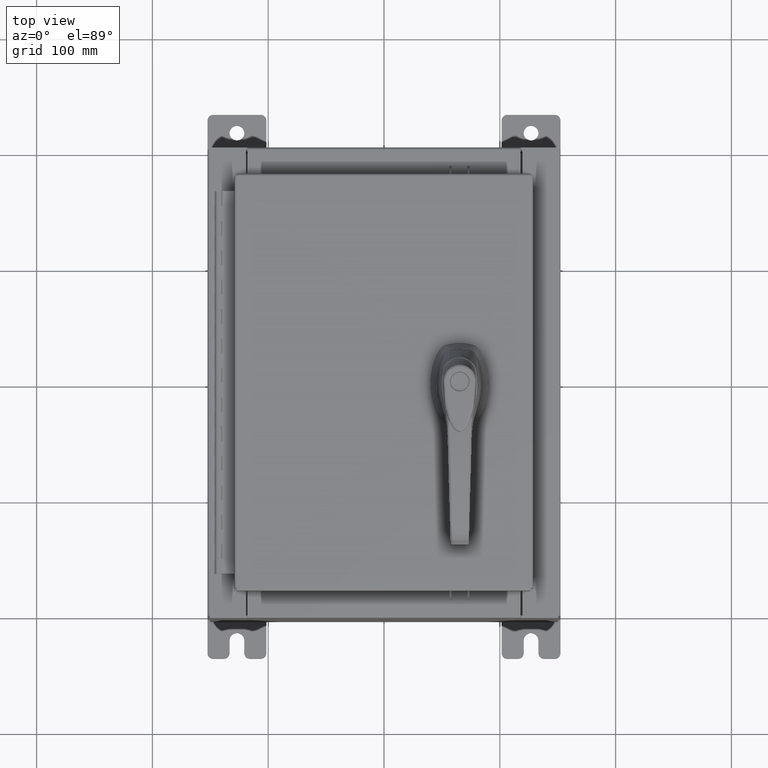
[diagram: clean part render]
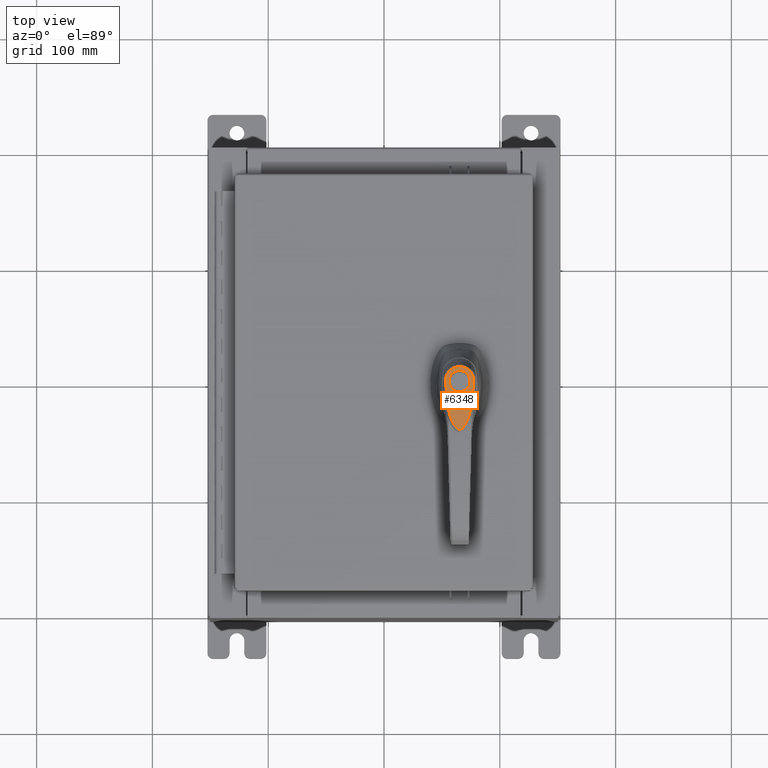
[diagram: same view with one face highlighted and labeled with its STEP entity id]
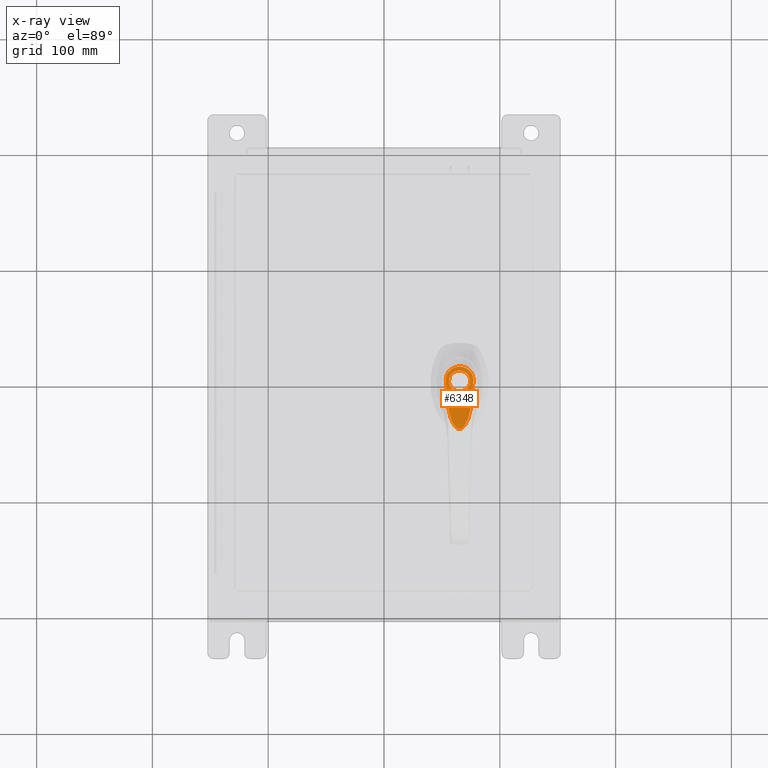
[diagram: x-ray of the same camera — body ghosted, the highlighted face saturated]
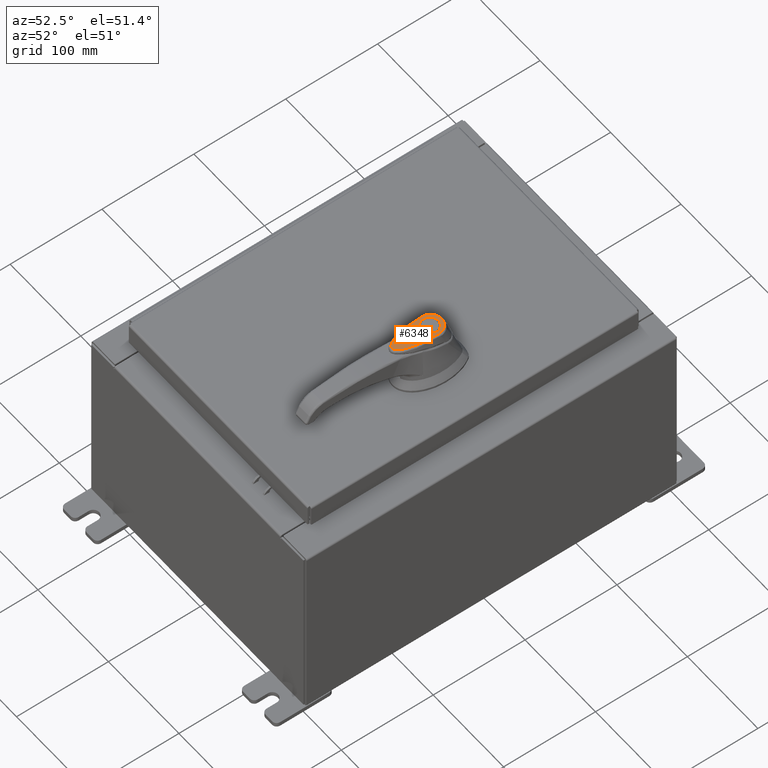
[diagram: same view with one face highlighted and labeled with its STEP entity id]
A machine part, top view. The second image highlights one B-rep face of the part: STEP entity #6348.
The next image is the same camera in x-ray: the body ghosted, the highlighted face saturated — about 0% of this face is hidden behind the body in this view.
A second angle (auxiliary view) of the same face is appended — the face is thin or edge-on in the first view.
In plain terms, the highlighted planar face has unit normal (0, 0, 1).
Its self-contained STEP definition (entity closure, byte-faithful):
#3 = CARTESIAN_POINT ( 'NONE',  ( -0.3460334751215680700, 0.1860253664896221500, 1.980314960629922000 ) ) ;
#48 = CARTESIAN_POINT ( 'NONE',  ( 1.578323082841545500, 0.06723060589633241000, 1.980314960629921500 ) ) ;
#253 = CARTESIAN_POINT ( 'NONE',  ( -0.1649306889570108500, 0.4634189354313594800, 1.980314960629921500 ) ) ;
#412 = CARTESIAN_POINT ( 'NONE',  ( 0.08720487243985672300, 0.4728568080396762800, 1.980314960629921500 ) ) ;
#614 = CARTESIAN_POINT ( 'NONE',  ( -0.08463924873056964700, 0.4725676488360962500, 1.980314960629921500 ) ) ;
#667 = EDGE_CURVE ( 'NONE', #21037, #29325, #90855, .T. ) ;
#904 = CARTESIAN_POINT ( 'NONE',  ( -0.08910381466073431800, -0.4724464152309315600, 1.980314960629921500 ) ) ;
#972 = CARTESIAN_POINT ( 'NONE',  ( -0.3987075394068722000, -0.3351130169564834300, 1.980314960629921500 ) ) ;
#986 = CARTESIAN_POINT ( 'NONE',  ( 0.2929845112066130600, 0.1348357858499972500, 1.980314960629922000 ) ) ;
#1273 = CARTESIAN_POINT ( 'NONE',  ( -0.2060914365165576700, -0.4528574917881068000, 1.980314960629921500 ) ) ;
#1643 = CARTESIAN_POINT ( 'NONE',  ( -0.3623454804213445100, -0.3686088045241797100, 1.980314960629921500 ) ) ;
#1741 = CARTESIAN_POINT ( 'NONE',  ( 0.2050450834193583100, -0.4701063821159979200, 1.980314960629921500 ) ) ;
#1882 = CARTESIAN_POINT ( 'NONE',  ( 1.176158790184276700, 0.3153824143514966100, 1.980314960629921500 ) ) ;
#1996 = CARTESIAN_POINT ( 'NONE',  ( -0.3873698764133599600, -0.3463175684987090400, 1.980314960629921500 ) ) ;
#2667 = CARTESIAN_POINT ( 'NONE',  ( -0.3749486679496776800, 0.1265985987407123900, 1.980314960629921700 ) ) ;
#3446 = EDGE_CURVE ( 'NONE', #14864, #76793, #33500, .T. ) ;
#3521 = CARTESIAN_POINT ( 'NONE',  ( 0.2900842300139764300, 0.1418251913374024600, 1.980314960629921500 ) ) ;
#3893 = CARTESIAN_POINT ( 'NONE',  ( -0.5282602553156187100, 0.08215987055594398100, 1.980314960629921500 ) ) ;
#4726 = CARTESIAN_POINT ( 'NONE',  ( -0.4337632918348776600, -0.2949397925354853000, 1.980314960629921500 ) ) ;
#4850 = CARTESIAN_POINT ( 'NONE',  ( -0.3923081069448494700, 0.06383425075046193800, 1.980314960629921700 ) ) ;
#4971 = CARTESIAN_POINT ( 'NONE',  ( -0.4737914642072748000, 0.2347010815242475100, 1.980314960629921500 ) ) ;
#4987 = CARTESIAN_POINT ( 'NONE',  ( 0.3130542098839731400, 0.06661046103129214500, 1.980314960629921700 ) ) ;
#5714 = CARTESIAN_POINT ( 'NONE',  ( -0.02840828145858799100, 0.3586620554689525800, 1.980314960629921500 ) ) ;
#5936 = CARTESIAN_POINT ( 'NONE',  ( 0.3137946438837113100, -0.06256599214653625600, 1.980314960629921500 ) ) ;
#6297 = CARTESIAN_POINT ( 'NONE',  ( 0.2641116473153556400, -0.1911702674029243100, 1.980314960629921700 ) ) ;
#6348 = ADVANCED_FACE ( 'NONE', ( #30471, #93423 ), #91085, .T. ) ;
#6531 = CARTESIAN_POINT ( 'NONE',  ( -0.3875115491628605700, -0.3461821960649185700, 1.980314960629921700 ) ) ;
#6649 = CARTESIAN_POINT ( 'NONE',  ( 0.1024551125972403700, -0.3294543087541342800, 1.980314960629921300 ) ) ;
#6998 = CARTESIAN_POINT ( 'NONE',  ( -0.05033187602192199700, -0.3586620554689525800, 1.980314960629921300 ) ) ;
#7025 = CARTESIAN_POINT ( 'NONE',  ( -0.05620868276384551100, 0.4729947885148219100, 1.980314960629921500 ) ) ;
#7042 = CARTESIAN_POINT ( 'NONE',  ( 1.102731962804125700, 0.3383951995980409900, 1.980314960629921500 ) ) ;
#7368 = CARTESIAN_POINT ( 'NONE',  ( -0.1699835576991507700, -0.3340364688901997800, 1.980314960629921500 ) ) ;
#7582 = CARTESIAN_POINT ( 'NONE',  ( -0.1245215643609424600, 0.3484936025614775400, 1.980314960629921300 ) ) ;
#7724 = CARTESIAN_POINT ( 'NONE',  ( -0.3361477735506478400, -0.2014215588395205400, 1.980314960629921700 ) ) ;
#7980 = CARTESIAN_POINT ( 'NONE',  ( -0.3870861921076187400, 0.3465881121332100000, 1.980314960629921500 ) ) ;
#8099 = CARTESIAN_POINT ( 'NONE',  ( -0.3909423282169973700, -0.07097283164640438800, 1.980314960629921500 ) ) ;
#8333 = CARTESIAN_POINT ( 'NONE',  ( -0.3455405495441109000, 0.3820390670373818900, 1.980314960629921500 ) ) ;
#8347 = CARTESIAN_POINT ( 'NONE',  ( -0.5252409000409604700, -0.09663414884607352000, 1.980314960629921500 ) ) ;
#8693 = CARTESIAN_POINT ( 'NONE',  ( -0.1369973162642306500, 0.4685071065196164700, 1.980314960629921500 ) ) ;
#8856 = CARTESIAN_POINT ( 'NONE',  ( 1.268280431736507500, -0.2812888762612419400, 1.980314960629921500 ) ) ;
#8984 = CARTESIAN_POINT ( 'NONE',  ( -0.08242698491537306400, -0.4726116127399041500, 1.980314960629922000 ) ) ;
#9064 = CARTESIAN_POINT ( 'NONE',  ( -0.08284808143885896700, 0.4726038563501988000, 1.980314960629921500 ) ) ;
#9332 = CARTESIAN_POINT ( 'NONE',  ( -0.09445612719366530700, -0.4722494760658380600, 1.980314960629921500 ) ) ;
#9432 = CARTESIAN_POINT ( 'NONE',  ( 1.543490168549529300, 0.1138050972603310800, 1.980314960629921500 ) ) ;
#9630 = CARTESIAN_POINT ( 'NONE',  ( 0.2674570705712831500, 0.1861245681561916300, 1.980314960629922000 ) ) ;
#9673 = CARTESIAN_POINT ( 'NONE',  ( -0.2332582629041683500, -0.4437875626226236400, 1.980314960629921500 ) ) ;
#10056 = CARTESIAN_POINT ( 'NONE',  ( -0.3732228957301653200, -0.3592753008835456500, 1.980314960629921500 ) ) ;
#10419 = CARTESIAN_POINT ( 'NONE',  ( -0.04664946918703361000, 0.4730904212098369100, 1.980314960629921500 ) ) ;
#10650 = CARTESIAN_POINT ( 'NONE',  ( 0.4363671753681787600, -0.4557804977568062900, 1.980314960629921500 ) ) ;
#10850 = CARTESIAN_POINT ( 'NONE',  ( -0.5350424932133020000, 0.01701923041682801600, 1.980314960629921500 ) ) ;
#11014 = CARTESIAN_POINT ( 'NONE',  ( 1.597222922322730800, -0.01201851889250673100, 1.980314960629921500 ) ) ;
#11126 = CARTESIAN_POINT ( 'NONE',  ( 1.580981480744917600, -0.06290138429529275300, 1.980314960629921500 ) ) ;
#11582 = CARTESIAN_POINT ( 'NONE',  ( -0.3936805541985073900, 0.05581565006307766900, 1.980314960629921500 ) ) ;
#11696 = CARTESIAN_POINT ( 'NONE',  ( -0.3878283072792974600, -0.3458782409070961800, 1.980314960629921500 ) ) ;
#11943 = CARTESIAN_POINT ( 'NONE',  ( 0.2983888077856775600, 0.1212128666112272700, 1.980314960629921500 ) ) ;
#12108 = CARTESIAN_POINT ( 'NONE',  ( -0.07532628943600366800, 0.4727249829826843900, 1.980314960629921500 ) ) ;
#12670 = CARTESIAN_POINT ( 'NONE',  ( -0.2381677188536077400, 0.2985407081053063600, 1.980314960629921700 ) ) ;
#12789 = CARTESIAN_POINT ( 'NONE',  ( -0.3885411725621795700, 0.3451920092296529900, 1.980314960629921500 ) ) ;
#12855 = EDGE_CURVE ( 'NONE', #54135, #98325, #90721, .T. ) ;
#13018 = CARTESIAN_POINT ( 'NONE',  ( -0.3881722868793791000, 0.3455475263991221700, 1.980314960629921500 ) ) ;
#13031 = CARTESIAN_POINT ( 'NONE',  ( 0.2229915133911826400, 0.2448632828438075700, 1.980314960629921700 ) ) ;
#14302 = CARTESIAN_POINT ( 'NONE',  ( 0.3111889694992966400, -0.07669413050298865000, 1.980314960629922000 ) ) ;
#14396 = CARTESIAN_POINT ( 'NONE',  ( -0.3929286078329494200, -0.3409055632553609800, 1.980314960629921500 ) ) ;
#14655 = CARTESIAN_POINT ( 'NONE',  ( 0.2472876877141492500, -0.2169763970757519200, 1.980314960629921700 ) ) ;
#14682 = CARTESIAN_POINT ( 'NONE',  ( 1.595788573272843600, -0.02169607774001459600, 1.980314960629921500 ) ) ;
#14864 = VERTEX_POINT ( 'NONE', #102166 ) ;
#15018 = CARTESIAN_POINT ( 'NONE',  ( 0.09546570710983810800, -0.3323545899467709700, 1.980314960629922000 ) ) ;
#15147 = CARTESIAN_POINT ( 'NONE',  ( -0.07523997137641627600, -0.4727263187239012500, 1.980314960629921500 ) ) ;
#15342 = CARTESIAN_POINT ( 'NONE',  ( -0.4829184032223817200, -0.2200568231816590100, 1.980314960629921500 ) ) ;
#15374 = CARTESIAN_POINT ( 'NONE',  ( -0.08570917657966978200, -0.3557307668625985200, 1.980314960629920900 ) ) ;
#15508 = CARTESIAN_POINT ( 'NONE',  ( 1.121908882920315000, -0.3326852328564502400, 1.980314960629921500 ) ) ;
#15603 = CARTESIAN_POINT ( 'NONE',  ( 0.07357996418946102800, 0.3405009096408575000, 1.980314960629921300 ) ) ;
#15733 = CARTESIAN_POINT ( 'NONE',  ( -0.1991321338569195200, -0.3215171343854930600, 1.980314960629921300 ) ) ;
#16084 = CARTESIAN_POINT ( 'NONE',  ( -0.3461972280516289500, -0.1861245681561147800, 1.980314960629922000 ) ) ;
#16208 = CARTESIAN_POINT ( 'NONE',  ( 0.01644028749028795700, 0.3543114529271935200, 1.980314960629921700 ) ) ;
#16325 = CARTESIAN_POINT ( 'NONE',  ( -0.3857889185272409500, 0.3478210874559781700, 1.980314960629921500 ) ) ;
#16440 = CARTESIAN_POINT ( 'NONE',  ( -0.3917943673642886300, -0.06661046103130424700, 1.980314960629921500 ) ) ;
#16684 = CARTESIAN_POINT ( 'NONE',  ( -0.3219708206481778400, 0.3983083233589804200, 1.980314960629921500 ) ) ;
#16791 = CARTESIAN_POINT ( 'NONE',  ( 0.3172941539302389100, 0.04370577023432149800, 1.980314960629921700 ) ) ;
#16916 = CARTESIAN_POINT ( 'NONE',  ( -0.2458742789840064300, 0.2932650189815146400, 1.980314960629922000 ) ) ;
#16934 = CARTESIAN_POINT ( 'NONE',  ( 0.3091235238213354000, 0.08515148562069914400, 1.980314960629921500 ) ) ;
#17041 = CARTESIAN_POINT ( 'NONE',  ( -0.1158055304010717200, 0.4708203569577932800, 1.980314960629921500 ) ) ;
#17051 = CARTESIAN_POINT ( 'NONE',  ( -0.4179624665174338500, 0.3141597883887908300, 1.980314960629921500 ) ) ;
#17293 = CARTESIAN_POINT ( 'NONE',  ( 0.3192913385826769400, 0.0000000000000000000, 1.980314960629921300 ) ) ;
#17403 = CARTESIAN_POINT ( 'NONE',  ( -0.08242723658501820100, 0.4726116084661486900, 1.980314960629921500 ) ) ;
#17691 = CARTESIAN_POINT ( 'NONE',  ( -0.1015711166539494900, -0.4718591137676875200, 1.980314960629921500 ) ) ;
#18068 = CARTESIAN_POINT ( 'NONE',  ( -0.2596255593058164300, -0.4328507072592414100, 1.980314960629921500 ) ) ;
#18161 = CARTESIAN_POINT ( 'NONE',  ( -0.5350611771973786700, 0.0005448158096190913100, 1.980314960629921500 ) ) ;
#18289 = CARTESIAN_POINT ( 'NONE',  ( -0.4483655509626719400, -0.2751802159626344200, 1.980314960629921500 ) ) ;
#18433 = CARTESIAN_POINT ( 'NONE',  ( -0.3785756675970898800, -0.3545174976077509800, 1.980314960629921500 ) ) ;
#18864 = CARTESIAN_POINT ( 'NONE',  ( 0.08314894677640331800, 0.3371086599075542900, 1.980314960629921300 ) ) ;
#19374 = CARTESIAN_POINT ( 'NONE',  ( 0.9722638919769169800, -0.3736641444643690700, 1.980314960629921500 ) ) ;
#19506 = CARTESIAN_POINT ( 'NONE',  ( -0.07991996519473208700, 0.4726526890894067200, 1.980314960629922000 ) ) ;
#19813 = CARTESIAN_POINT ( 'NONE',  ( -0.5350985451655322400, -0.03240401340479875900, 1.980314960629921500 ) ) ;
#20532 = CARTESIAN_POINT ( 'NONE',  ( -0.3914746598113853500, -0.3423443711752168800, 1.980314960629921500 ) ) ;
#20833 = CARTESIAN_POINT ( 'NONE',  ( -0.3881708734106047400, -0.3455488864459843000, 1.980314960629921500 ) ) ;
#21032 = EDGE_CURVE ( 'NONE', #98325, #21037, #94327, .T. ) ;
#21037 = VERTEX_POINT ( 'NONE', #32687 ) ;
#21088 = CARTESIAN_POINT ( 'NONE',  ( -0.08307584897447931000, 0.3566642326703967600, 1.980314960629921700 ) ) ;
#21421 = CARTESIAN_POINT ( 'NONE',  ( -0.4385485960235056000, 0.2891495245046870600, 1.980314960629921500 ) ) ;
#22377 = CARTESIAN_POINT ( 'NONE',  ( 0.3192907000348125800, -0.01096869861385410400, 1.980314960629921300 ) ) ;
#22722 = CARTESIAN_POINT ( 'NONE',  ( 0.3011308309007036400, -0.1129500429295131200, 1.980314960629921700 ) ) ;
#23049 = CARTESIAN_POINT ( 'NONE',  ( 0.2054932041037261800, -0.2623615921312941200, 1.980314960629922400 ) ) ;
#23413 = CARTESIAN_POINT ( 'NONE',  ( 0.08184278787108309500, -0.3377588865258320800, 1.980314960629921500 ) ) ;
#23461 = CARTESIAN_POINT ( 'NONE',  ( 1.562275875256772000, 0.09148576712676960400, 1.980314960629921500 ) ) ;
#23506 = CARTESIAN_POINT ( 'NONE',  ( -0.5105183832494651900, -0.1517912693071043500, 1.980314960629921500 ) ) ;
#23749 = AXIS2_PLACEMENT_3D ( 'NONE', #93953, #65350, #65952 ) ;
#23773 = CARTESIAN_POINT ( 'NONE',  ( -0.09923361088520431300, -0.3536329620602653400, 1.980314960629921300 ) ) ;
#23871 = CARTESIAN_POINT ( 'NONE',  ( -0.4478552296108499500, 0.2759077513646394600, 1.980314960629921500 ) ) ;
#24134 = CARTESIAN_POINT ( 'NONE',  ( -0.2253954452299789200, -0.3066633963813159000, 1.980314960629921500 ) ) ;
#24502 = CARTESIAN_POINT ( 'NONE',  ( -0.3645627560153325600, -0.1515046563372954600, 1.980314960629920900 ) ) ;
#24646 = CARTESIAN_POINT ( 'NONE',  ( 0.1466552877494987100, 0.3066633963813794100, 1.980314960629921300 ) ) ;
#24758 = CARTESIAN_POINT ( 'NONE',  ( -0.3838351085531698800, 0.3496619482468812400, 1.980314960629921500 ) ) ;
#24877 = CARTESIAN_POINT ( 'NONE',  ( -0.3980302181523522900, -0.02195139480795076100, 1.980314960629921700 ) ) ;
#25102 = CARTESIAN_POINT ( 'NONE',  ( -0.4436829218908339100, -0.2818691603479849300, 1.980314960629921500 ) ) ;
#25107 = CARTESIAN_POINT ( 'NONE',  ( -0.2730623559749204600, 0.4272549482576785700, 1.980314960629921500 ) ) ;
#25476 = CARTESIAN_POINT ( 'NONE',  ( -0.1015964453185491900, 0.4718575711917122300, 1.980314960629921500 ) ) ;
#25488 = CARTESIAN_POINT ( 'NONE',  ( 0.05424208542656262800, 0.3465737481924348100, 1.980314960629921300 ) ) ;
#25651 = CARTESIAN_POINT ( 'NONE',  ( -0.05588618822791478100, -0.4729988060393404700, 1.980314960629921500 ) ) ;
#26137 = CARTESIAN_POINT ( 'NONE',  ( -0.1157585250431939100, -0.4708245290708770700, 1.980314960629921500 ) ) ;
#26486 = CARTESIAN_POINT ( 'NONE',  ( -0.2851698570209809100, -0.4200730033132770200, 1.980314960629921500 ) ) ;
#26790 = CARTESIAN_POINT ( 'NONE',  ( -0.3104792740692926000, 0.2361125767542176200, 1.980314960629921700 ) ) ;
#26810 = CARTESIAN_POINT ( 'NONE',  ( 0.02049345340479927600, 0.3536329620602653400, 1.980314960629921700 ) ) ;
#26834 = CARTESIAN_POINT ( 'NONE',  ( -0.3825258877469194200, -0.3508812275622604800, 1.980314960629921500 ) ) ;
#27049 = CARTESIAN_POINT ( 'NONE',  ( -0.5085938011967370300, 0.1606069282378415300, 1.980314960629921500 ) ) ;
#27438 = CARTESIAN_POINT ( 'NONE',  ( 1.470156225902664800, 0.1766654952957526500, 1.980314960629921500 ) ) ;
#27899 = EDGE_CURVE ( 'NONE', #29325, #54135, #78044, .T. ) ;
#28487 = CARTESIAN_POINT ( 'NONE',  ( -0.07756552208144629200, -0.4726903508369070800, 1.980314960629921300 ) ) ;
#29140 = CARTESIAN_POINT ( 'NONE',  ( -0.3914802376202897700, 0.3423388953478974700, 1.980314960629921500 ) ) ;
#29280 = CARTESIAN_POINT ( 'NONE',  ( 0.2918345451737252000, 0.1376368775919698000, 1.980314960629921700 ) ) ;
#29325 = VERTEX_POINT ( 'NONE', #69762 ) ;
#29393 = CARTESIAN_POINT ( 'NONE',  ( -0.3929338073500184300, 0.3409004178027113500, 1.980314960629921500 ) ) ;
#30128 = CARTESIAN_POINT ( 'NONE',  ( 1.516036056365981400, 0.1409614064658847900, 1.980314960629921500 ) ) ;
#30471 = FACE_OUTER_BOUND ( 'NONE', #77638, .T. ) ;
#30745 = CARTESIAN_POINT ( 'NONE',  ( 0.2017353094300180200, 0.4702191763794705800, 1.980314960629921500 ) ) ;
#30961 = CARTESIAN_POINT ( 'NONE',  ( 1.597735851608700100, -0.002229061537412255800, 1.980314960629921500 ) ) ;
#31035 = CARTESIAN_POINT ( 'NONE',  ( -0.3739116765101641000, 0.1293135543761235500, 1.980314960629922000 ) ) ;
#31051 = CARTESIAN_POINT ( 'NONE',  ( 0.2962085104693723500, -0.1265985987406761700, 1.980314960629921500 ) ) ;
#31162 = CARTESIAN_POINT ( 'NONE',  ( 0.03732405176291133500, 0.3505590482394515000, 1.980314960629921700 ) ) ;
#31404 = CARTESIAN_POINT ( 'NONE',  ( 0.1746821918969629900, -0.2879036309451099000, 1.980314960629921500 ) ) ;
#31516 = CARTESIAN_POINT ( 'NONE',  ( -0.4126507408910013400, 0.3202889923274089300, 1.980314960629921500 ) ) ;
#31736 = CARTESIAN_POINT ( 'NONE',  ( 0.04578140688055916400, -0.3484936025614887600, 1.980314960629921500 ) ) ;
#31875 = CARTESIAN_POINT ( 'NONE',  ( -0.3683910364418486200, 0.1432845004923061200, 1.980314960629921300 ) ) ;
#32095 = CARTESIAN_POINT ( 'NONE',  ( -0.1032043294905977800, -0.3529380282046981100, 1.980314960629921500 ) ) ;
#32151 = CARTESIAN_POINT ( 'NONE',  ( -0.07989113601712974400, -0.4726531818959190900, 1.980314960629921300 ) ) ;
#32462 = CARTESIAN_POINT ( 'NONE',  ( -0.2330439330429125700, -0.3018905250830795100, 1.980314960629921700 ) ) ;
#32669 = CARTESIAN_POINT ( 'NONE',  ( -0.3734065476303434200, 0.1306134789590225100, 1.980314960629921300 ) ) ;
#32683 = CARTESIAN_POINT ( 'NONE',  ( -0.4670960672500241200, -0.2484244384212323500, 1.980314960629921500 ) ) ;
#32687 = CARTESIAN_POINT ( 'NONE',  ( -0.08221679023054297200, 0.4726152583958166400, 1.980314960629921500 ) ) ;
#32808 = CARTESIAN_POINT ( 'NONE',  ( -0.3705747026540547300, -0.1376368775919343500, 1.980314960629921300 ) ) ;
#32940 = CARTESIAN_POINT ( 'NONE',  ( -0.2705032716355849100, 0.2747471054765469600, 1.980314960629921500 ) ) ;
#33037 = CARTESIAN_POINT ( 'NONE',  ( -0.3812089617321373600, 0.3520934887623176100, 1.980314960629921500 ) ) ;
#33321 = CARTESIAN_POINT ( 'NONE',  ( 0.7310392802102450000, 0.4203552819370505700, 1.980314960629921500 ) ) ;
#33406 = CARTESIAN_POINT ( 'NONE',  ( -0.2335839899547011700, 0.4436634281019054500, 1.980314960629921500 ) ) ;
#33415 = CARTESIAN_POINT ( 'NONE',  ( -0.4287098159689140500, -0.3014231977939074200, 1.980314960629921500 ) ) ;
#33500 = B_SPLINE_CURVE_WITH_KNOTS ( 'NONE', 3,
 ( #102904, #49493, #71181, #76197, #11582, #39401, #51369, #4850, #85344, #56842, #49027, #98167, #2667, #31035, #32669, #31875, #91410, #58445, #3, #57172, #74134, #100077, #26790, #57661, #32940, #85679, #16916, #74990, #12670, #41371, #39265, #94050, #37198, #72132, #102772, #96569, #55469, #99614, #7582, #90560, #106518, #105149, #79793, #21088, #76294, #5714, #106508, #72228, #16208, #26810, #42309, #36960, #31162, #25488, #15603, #18864, #45350, #86667, #36618, #60698, #51841, #48681, #24646, #97314, #74398, #57526, #51621, #13031, #59986, #93917, #72701, #46567, #98884, #9630, #107275, #89258, #3521, #29280, #986, #41604, #11943, #52059, #16934, #36368, #67409, #74500, #4987, #16791, #102174, #17293 ),
 .UNSPECIFIED., .F., .F.,
 ( 4, 1, 1, 1, 2, 2, 1, 1, 1, 2, 2, 1, 1, 2, 2, 2, 1, 1, 2, 2, 1, 1, 1, 2, 2, 1, 1, 1, 2, 2, 2, 1, 1, 1, 2, 2, 1, 1, 1, 2, 2, 1, 1, 2, 2, 2, 1, 1, 2, 2, 1, 1, 1, 2, 2, 1, 1, 1, 2, 2, 4 ),
 ( 0.0000000000000000000, 0.03124999999999973600, 0.04687499999999961100, 0.05468749999999955600, 0.05859374999999950700, 0.06249999999999945200, 0.09374999999999898700, 0.1093749999999988100, 0.1171874999999987400, 0.1210937499999987000, 0.1249999999999986700, 0.1562499999999982500, 0.1718749999999979700, 0.1796874999999977800, 0.1874999999999976100, 0.2499999999999966700, 0.2812499999999961100, 0.2968749999999958400, 0.3046874999999957300, 0.3124999999999956100, 0.3437499999999950000, 0.3593749999999947300, 0.3671874999999946700, 0.3710937499999947300, 0.3749999999999947300, 0.4062499999999948400, 0.4218749999999949500, 0.4296874999999949500, 0.4335937499999949500, 0.4374999999999950000, 0.4999999999999949500, 0.5312499999999950000, 0.5468749999999948900, 0.5546874999999948900, 0.5585937499999948900, 0.5624999999999947800, 0.5937499999999948900, 0.6093749999999948900, 0.6171874999999947800, 0.6210937499999947800, 0.6249999999999946700, 0.6562499999999948900, 0.6718749999999950000, 0.6796874999999950000, 0.6874999999999951200, 0.7499999999999954500, 0.7812499999999956700, 0.7968749999999956700, 0.8046874999999958900, 0.8124999999999960000, 0.8437499999999966700, 0.8593749999999970000, 0.8671874999999971100, 0.8710937499999972200, 0.8749999999999972200, 0.9062499999999980000, 0.9218749999999983300, 0.9296874999999984500, 0.9335937499999985600, 0.9374999999999986700, 1.000000000000000000 ),
 .UNSPECIFIED. ) ;
#33634 = CARTESIAN_POINT ( 'NONE',  ( -0.3900160474665486100, 0.3437694418360269800, 1.980314960629921500 ) ) ;
#33775 = CARTESIAN_POINT ( 'NONE',  ( -0.09447141683401966100, 0.4722488274789352600, 1.980314960629921500 ) ) ;
#33800 = CARTESIAN_POINT ( 'NONE',  ( 0.5133453557305254200, -0.4485433274845153100, 1.980314960629921500 ) ) ;
#34046 = CARTESIAN_POINT ( 'NONE',  ( -0.007517924510310238100, -0.4733714055076380700, 1.980314960629921500 ) ) ;
#34049 = CARTESIAN_POINT ( 'NONE',  ( -0.08284732465537038300, -0.4726038705034372700, 1.980314960629921500 ) ) ;
#34396 = CARTESIAN_POINT ( 'NONE',  ( -0.1369131218506565200, -0.4685182027219951800, 1.980314960629921500 ) ) ;
#34640 = CARTESIAN_POINT ( 'NONE',  ( 0.5902123049430994000, -0.4391864247139504200, 1.980314960629921500 ) ) ;
#34753 = CARTESIAN_POINT ( 'NONE',  ( -0.3101624724462414600, -0.4060636234411494900, 1.980314960629921500 ) ) ;
#35125 = CARTESIAN_POINT ( 'NONE',  ( -0.3851379391552978100, -0.3484344339005818200, 1.980314960629921500 ) ) ;
#35194 = CARTESIAN_POINT ( 'NONE',  ( -0.5049820463145244800, -0.1672956347779330200, 1.980314960629921500 ) ) ;
#35365 = CARTESIAN_POINT ( 'NONE',  ( 1.550072899479856000, 0.1067080664254876500, 1.980314960629921500 ) ) ;
#36368 = CARTESIAN_POINT ( 'NONE',  ( 0.3113317630397768900, 0.07524207302071928000, 1.980314960629921500 ) ) ;
#36618 = CARTESIAN_POINT ( 'NONE',  ( 0.09124340021885978000, 0.3340364688901901200, 1.980314960629921300 ) ) ;
#36960 = CARTESIAN_POINT ( 'NONE',  ( 0.02446417201030385100, 0.3529380282046893900, 1.980314960629921300 ) ) ;
#37198 = CARTESIAN_POINT ( 'NONE',  ( -0.1811952700775440500, 0.3294543087541296800, 1.980314960629921500 ) ) ;
#37240 = CARTESIAN_POINT ( 'NONE',  ( 1.391278555791930700, -0.2246854927315540000, 1.980314960629921500 ) ) ;
#37411 = CARTESIAN_POINT ( 'NONE',  ( -0.5307744440836967800, 0.06609376683451270700, 1.980314960629921500 ) ) ;
#38838 = CARTESIAN_POINT ( 'NONE',  ( 1.319314512285418000, 0.2603791411963813900, 1.980314960629921500 ) ) ;
#38963 = CARTESIAN_POINT ( 'NONE',  ( -0.07762313332334316900, 0.4726894211970827400, 1.980314960629921700 ) ) ;
#39048 = CARTESIAN_POINT ( 'NONE',  ( -0.4285859177702990300, 0.3019013805115548500, 1.980314960629921500 ) ) ;
#39265 = CARTESIAN_POINT ( 'NONE',  ( -0.2098605967867733200, 0.3159591632254510300, 1.980314960629921500 ) ) ;
#39277 = CARTESIAN_POINT ( 'NONE',  ( 0.2946663901500281000, -0.1306134789590194000, 1.980314960629921500 ) ) ;
#39401 = CARTESIAN_POINT ( 'NONE',  ( -0.3930024523242821600, 0.05986671322786813600, 1.980314960629920900 ) ) ;
#39523 = CARTESIAN_POINT ( 'NONE',  ( 0.6559571401844011000, 0.4313472701839113400, 1.980314960629921500 ) ) ;
#39613 = CARTESIAN_POINT ( 'NONE',  ( 0.1620514800993853000, -0.2967776948104677300, 1.980314960629921300 ) ) ;
#39969 = CARTESIAN_POINT ( 'NONE',  ( 0.03160275290629457900, -0.3515722494768215300, 1.980314960629921700 ) ) ;
#40326 = CARTESIAN_POINT ( 'NONE',  ( -0.1329822429071788900, -0.3465737481923122900, 1.980314960629920600 ) ) ;
#40355 = CARTESIAN_POINT ( 'NONE',  ( 0.8964292418196098100, -0.3902590091590377700, 1.980314960629921500 ) ) ;
#40377 = CARTESIAN_POINT ( 'NONE',  ( 0.5806004247914073900, 0.4403452868113804700, 1.980314960629921500 ) ) ;
#40669 = CARTESIAN_POINT ( 'NONE',  ( -0.2754826554943377600, -0.2711091953291923100, 1.980314960629921500 ) ) ;
#40897 = CARTESIAN_POINT ( 'NONE',  ( -0.3875115491687560200, 0.3461821960709959800, 1.980314960629921700 ) ) ;
#41021 = CARTESIAN_POINT ( 'NONE',  ( -0.3723143065273208900, -0.1333724331941687200, 1.980314960629921500 ) ) ;
#41265 = CARTESIAN_POINT ( 'NONE',  ( -0.3759145296176592000, 0.3569106835303212400, 1.980314960629921500 ) ) ;
#41371 = CARTESIAN_POINT ( 'NONE',  ( -0.2254946468963281200, 0.3068271493114350100, 1.980314960629922000 ) ) ;
#41604 = CARTESIAN_POINT ( 'NONE',  ( 0.2935741490470097400, 0.1333724331941575900, 1.980314960629921700 ) ) ;
#41623 = CARTESIAN_POINT ( 'NONE',  ( -0.2063469005152438500, 0.4527788417979495800, 1.980314960629921500 ) ) ;
#41645 = CARTESIAN_POINT ( 'NONE',  ( 0.8201754043372622100, -0.4043008819726713300, 1.980314960629921500 ) ) ;
#41951 = CARTESIAN_POINT ( 'NONE',  ( -0.08911218345606751500, 0.4724461501084892800, 1.980314960629921500 ) ) ;
#42232 = CARTESIAN_POINT ( 'NONE',  ( -0.08463637374111458700, -0.4725677119985549100, 1.980314960629921500 ) ) ;
#42309 = CARTESIAN_POINT ( 'NONE',  ( 0.02319424198996595000, 0.3531650318231930900, 1.980314960629921500 ) ) ;
#42586 = CARTESIAN_POINT ( 'NONE',  ( -0.1647848647087372900, -0.4634490614692741200, 1.980314960629921500 ) ) ;
#42942 = CARTESIAN_POINT ( 'NONE',  ( -0.3340348276712665200, -0.3903851773611313200, 1.980314960629921500 ) ) ;
#43008 = CARTESIAN_POINT ( 'NONE',  ( -0.5078435215611392100, -0.1595973291847777600, 1.980314960629921500 ) ) ;
#43286 = CARTESIAN_POINT ( 'NONE',  ( -0.3864386105629816800, -0.3472053866973299800, 1.980314960629921500 ) ) ;
#43306 = CARTESIAN_POINT ( 'NONE',  ( 1.028895748518538600, 0.3584350549856464800, 1.980314960629921500 ) ) ;
#43534 = CARTESIAN_POINT ( 'NONE',  ( 1.575941988744961100, -0.07131646048060566500, 1.980314960629921500 ) ) ;
#44021 = CARTESIAN_POINT ( 'NONE',  ( 0.1277824018765411600, -0.4719217496367980600, 1.980314960629921500 ) ) ;
#44499 = ORIENTED_EDGE ( 'NONE', *, *, #27899, .F. ) ;
#44589 = CARTESIAN_POINT ( 'NONE',  ( 0.8057848570449698300, 0.4069191767656535300, 1.980314960629921500 ) ) ;
#44794 = CARTESIAN_POINT ( 'NONE',  ( 1.533934478396610900, -0.1243575969844703700, 1.980314960629921500 ) ) ;
#45053 = CARTESIAN_POINT ( 'NONE',  ( 1.559352640416484400, -0.09528020240156004400, 1.980314960629921500 ) ) ;
#45068 = CARTESIAN_POINT ( 'NONE',  ( 1.519479381491168700, -0.1373750790292099200, 1.980314960629921500 ) ) ;
#45350 = CARTESIAN_POINT ( 'NONE',  ( 0.08722852000055561500, 0.3355785892095287100, 1.980314960629921500 ) ) ;
#45760 = CARTESIAN_POINT ( 'NONE',  ( 1.454009790257094300, 0.1872909914061016100, 1.980314960629921500 ) ) ;
#46533 = CARTESIAN_POINT ( 'NONE',  ( -0.4181027616142126100, -0.3139978285413978500, 1.980314960629921500 ) ) ;
#46567 = CARTESIAN_POINT ( 'NONE',  ( 0.2574076160703318000, 0.2014215588395073500, 1.980314960629921700 ) ) ;
#46879 = CARTESIAN_POINT ( 'NONE',  ( -0.5021205710679097500, -0.1749939403710883400, 1.980314960629921500 ) ) ;
#47033 = CARTESIAN_POINT ( 'NONE',  ( 1.573550776169326600, 0.07565280700662487000, 1.980314960629921500 ) ) ;
#47128 = CARTESIAN_POINT ( 'NONE',  ( 0.3163590124615893700, -0.04634815583788004500, 1.980314960629921500 ) ) ;
#47356 = CARTESIAN_POINT ( 'NONE',  ( -0.4958418114767188500, -0.1900824984233751800, 1.980314960629921500 ) ) ;
#47476 = CARTESIAN_POINT ( 'NONE',  ( 0.2821470556455308300, -0.1597620551163928800, 1.980314960629921500 ) ) ;
#47710 = CARTESIAN_POINT ( 'NONE',  ( -0.3900114955411931300, -0.3437738493058599700, 1.980314960629921500 ) ) ;
#47827 = CARTESIAN_POINT ( 'NONE',  ( 0.1467544894160282000, -0.3068271493114412300, 1.980314960629920900 ) ) ;
#48166 = CARTESIAN_POINT ( 'NONE',  ( 0.02724038229113380500, -0.3524242886241310000, 1.980314960629921700 ) ) ;
#48199 = CARTESIAN_POINT ( 'NONE',  ( 1.424969745829789900, -0.2054446552350647800, 1.980314960629921500 ) ) ;
#48539 = CARTESIAN_POINT ( 'NONE',  ( -0.1618891042568502700, -0.3371086599075010000, 1.980314960629921500 ) ) ;
#48677 = CARTESIAN_POINT ( 'NONE',  ( 0.2822171567039237200, -0.4665642638906491400, 1.980314960629921500 ) ) ;
#48681 = CARTESIAN_POINT ( 'NONE',  ( 0.1388857937853739400, 0.3113338424871231500, 1.980314960629921300 ) ) ;
#48905 = CARTESIAN_POINT ( 'NONE',  ( -0.3141171842167376200, -0.2311331928953767000, 1.980314960629921700 ) ) ;
#49027 = CARTESIAN_POINT ( 'NONE',  ( -0.3798709883809908700, 0.1129500429296162900, 1.980314960629921700 ) ) ;
#49274 = CARTESIAN_POINT ( 'NONE',  ( -0.3827380511620257500, -0.1047617083938691800, 1.980314960629920900 ) ) ;
#49493 = CARTESIAN_POINT ( 'NONE',  ( -0.3980308575151102500, 0.01096869861398706200, 1.980314960629921700 ) ) ;
#49513 = CARTESIAN_POINT ( 'NONE',  ( -0.3678463193632430800, 0.3639986571838570400, 1.980314960629921500 ) ) ;
#49867 = CARTESIAN_POINT ( 'NONE',  ( -0.1788438622881810300, 0.4605421863236986400, 1.980314960629921500 ) ) ;
#50044 = CARTESIAN_POINT ( 'NONE',  ( -0.06576762287869096500, 0.4728729787836279400, 1.980314960629921500 ) ) ;
#50093 = CARTESIAN_POINT ( 'NONE',  ( -0.4388167677008412700, -0.2884563872770630200, 1.980314960629921500 ) ) ;
#50231 = CARTESIAN_POINT ( 'NONE',  ( -0.08553418213987230800, 0.4725455028846750100, 1.980314960629921500 ) ) ;
#50369 = CARTESIAN_POINT ( 'NONE',  ( -0.3875115491628605700, -0.3461821960649185700, 1.980314960629921700 ) ) ;
#50440 = CARTESIAN_POINT ( 'NONE',  ( -0.3987056101401826300, 0.3351147875512550100, 1.980314960629921500 ) ) ;
#50504 = CARTESIAN_POINT ( 'NONE',  ( -0.08731791901407372200, -0.4725013785836246200, 1.980314960629921500 ) ) ;
#50740 = CARTESIAN_POINT ( 'NONE',  ( 1.590646572324265500, -0.04060489388900415800, 1.980314960629921500 ) ) ;
#50841 = CARTESIAN_POINT ( 'NONE',  ( -0.06556237488687968700, -0.4728759962588429700, 1.980314960629921500 ) ) ;
#50845 = CARTESIAN_POINT ( 'NONE',  ( -0.1924348524151419700, -0.4570575316218523600, 1.980314960629921500 ) ) ;
#50864 = CARTESIAN_POINT ( 'NONE',  ( 1.570902496745003800, -0.07973153666591843700, 1.980314960629921500 ) ) ;
#51187 = CARTESIAN_POINT ( 'NONE',  ( -0.3567598116070043200, -0.3730729552277530200, 1.980314960629921500 ) ) ;
#51275 = EDGE_CURVE ( 'NONE', #76793, #14864, #73218, .T. ) ;
#51369 = CARTESIAN_POINT ( 'NONE',  ( -0.3925348013640226900, 0.06256599214656856400, 1.980314960629921500 ) ) ;
#51537 = CARTESIAN_POINT ( 'NONE',  ( -0.3872281067822374000, -0.3464528391013695400, 1.980314960629921500 ) ) ;
#51551 = CARTESIAN_POINT ( 'NONE',  ( 0.4296111509411292800, 0.4563381427769774300, 1.980314960629921500 ) ) ;
#51621 = CARTESIAN_POINT ( 'NONE',  ( 0.1967424980140255500, 0.2711091953292489300, 1.980314960629922400 ) ) ;
#51826 = CARTESIAN_POINT ( 'NONE',  ( -0.3878290285125424200, 0.3458775484203818800, 1.980314960629921500 ) ) ;
#51841 = CARTESIAN_POINT ( 'NONE',  ( 0.1203919763762625700, 0.3215171343856246800, 1.980314960629921300 ) ) ;
#52059 = CARTESIAN_POINT ( 'NONE',  ( 0.3039978936816477600, 0.1047617083940274700, 1.980314960629921500 ) ) ;
#52122 = CARTESIAN_POINT ( 'NONE',  ( 1.374056253688192200, -0.2335093588266045600, 1.980314960629921500 ) ) ;
#52315 = CARTESIAN_POINT ( 'NONE',  ( -0.4658125136899337600, 0.2489343339304356800, 1.980314960629921500 ) ) ;
#52961 = CARTESIAN_POINT ( 'NONE',  ( -0.08221679032843209900, -0.4726152643743815100, 1.980314960629921700 ) ) ;
#53049 = CARTESIAN_POINT ( 'NONE',  ( 1.421716918965953300, 0.2085419836267995400, 1.980314960629921500 ) ) ;
#53164 = CARTESIAN_POINT ( 'NONE',  ( -0.3958409468094757900, 0.3380234627123391300, 1.980314960629921500 ) ) ;
#53880 = CARTESIAN_POINT ( 'NONE',  ( 1.583095389513764100, 0.05880840478603996400, 1.980314960629921500 ) ) ;
#54135 = VERTEX_POINT ( 'NONE', #50369 ) ;
#54205 = CARTESIAN_POINT ( 'NONE',  ( 1.485994679649188300, 0.1652802198879154100, 1.980314960629921500 ) ) ;
#54376 = ORIENTED_EDGE ( 'NONE', *, *, #12855, .F. ) ;
#54523 = CARTESIAN_POINT ( 'NONE',  ( -0.4072099502575942700, -0.3262561661089845600, 1.980314960629921500 ) ) ;
#54900 = CARTESIAN_POINT ( 'NONE',  ( 1.593476232207476700, -0.03125205092011745800, 1.980314960629921500 ) ) ;
#55341 = CARTESIAN_POINT ( 'NONE',  ( 0.3142622948439750500, -0.05986671322780677500, 1.980314960629921700 ) ) ;
#55469 = CARTESIAN_POINT ( 'NONE',  ( -0.1605829453514501500, 0.3377588865258233100, 1.980314960629920900 ) ) ;
#55675 = CARTESIAN_POINT ( 'NONE',  ( 0.2672933176412523600, -0.1860253664896434100, 1.980314960629921500 ) ) ;
#56005 = CARTESIAN_POINT ( 'NONE',  ( 0.1121345775972310000, -0.3251926772751352300, 1.980314960629921500 ) ) ;
#56343 = CARTESIAN_POINT ( 'NONE',  ( -0.01744648417662921600, -0.3586601410305987300, 1.980314960629920900 ) ) ;
#56392 = ORIENTED_EDGE ( 'NONE', *, *, #3446, .T. ) ;
#56703 = CARTESIAN_POINT ( 'NONE',  ( -0.1686836331163233400, -0.3345415977699938700, 1.980314960629921700 ) ) ;
#56731 = CARTESIAN_POINT ( 'NONE',  ( 1.353708977850740300, 0.2436616706481195800, 1.980314960629921500 ) ) ;
#56842 = CARTESIAN_POINT ( 'NONE',  ( -0.3859438269325596900, 0.09361216416671705500, 1.980314960629921500 ) ) ;
#57029 = CARTESIAN_POINT ( 'NONE',  ( -0.4071735103993148800, 0.3262946015273676700, 1.980314960629921500 ) ) ;
#57056 = CARTESIAN_POINT ( 'NONE',  ( -0.3326350977216883700, -0.2065042002438244300, 1.980314960629922000 ) ) ;
#57172 = CARTESIAN_POINT ( 'NONE',  ( -0.3428518047956711800, 0.1911702674029123500, 1.980314960629921300 ) ) ;
#57285 = CARTESIAN_POINT ( 'NONE',  ( -0.3872280542000571800, 0.3464528892852340400, 1.980314960629921500 ) ) ;
#57404 = CARTESIAN_POINT ( 'NONE',  ( -0.3900719205201196900, -0.07524207302065007200, 1.980314960629921500 ) ) ;
#57461 = CARTESIAN_POINT ( 'NONE',  ( 1.593767218117033900, 0.03149552741084880900, 1.980314960629921500 ) ) ;
#57526 = CARTESIAN_POINT ( 'NONE',  ( 0.1776063183356124400, 0.2866577664543485400, 1.980314960629922000 ) ) ;
#57651 = CARTESIAN_POINT ( 'NONE',  ( -0.3567501790167239600, 0.3730806535279910200, 1.980314960629921500 ) ) ;
#57661 = CARTESIAN_POINT ( 'NONE',  ( -0.2842333615840224000, 0.2623615921313233200, 1.980314960629921300 ) ) ;
#58007 = CARTESIAN_POINT ( 'NONE',  ( -0.1510175156258406200, 0.4662956845390204800, 1.980314960629921500 ) ) ;
#58033 = CARTESIAN_POINT ( 'NONE',  ( 1.065871983899661800, 0.3488372507682236400, 1.980314960629921500 ) ) ;
#58279 = CARTESIAN_POINT ( 'NONE',  ( 1.597605678162095500, 0.007591286300388687900, 1.980314960629921500 ) ) ;
#58282 = CARTESIAN_POINT ( 'NONE',  ( -0.08221679032843209900, -0.4726152643743815100, 1.980314960629921700 ) ) ;
#58350 = CARTESIAN_POINT ( 'NONE',  ( -0.08374388222847803400, 0.4725871024669651700, 1.980314960629921500 ) ) ;
#58445 = CARTESIAN_POINT ( 'NONE',  ( -0.3507039212273287400, 0.1782558725254782000, 1.980314960629920900 ) ) ;
#58610 = CARTESIAN_POINT ( 'NONE',  ( -0.09088791883837793500, -0.4723807688425669700, 1.980314960629921500 ) ) ;
#58972 = CARTESIAN_POINT ( 'NONE',  ( -0.2197480206179733000, -0.4486574519543616300, 1.980314960629921500 ) ) ;
#59327 = CARTESIAN_POINT ( 'NONE',  ( -0.3678414649722350800, -0.3640028605209958400, 1.980314960629921500 ) ) ;
#59420 = CARTESIAN_POINT ( 'NONE',  ( 1.596021778050739700, 0.02206969047880319400, 1.980314960629921500 ) ) ;
#59675 = CARTESIAN_POINT ( 'NONE',  ( -0.3875115491628605700, -0.3461821960649185700, 1.980314960629921700 ) ) ;
#59905 = CARTESIAN_POINT ( 'NONE',  ( 1.458061651944838200, -0.1849620911343226900, 1.980314960629921500 ) ) ;
#59986 = CARTESIAN_POINT ( 'NONE',  ( 0.2353770267364191600, 0.2311331928953271900, 1.980314960629921300 ) ) ;
#60030 = CARTESIAN_POINT ( 'NONE',  ( 0.3592921660360513000, -0.4611723808237276900, 1.980314960629921500 ) ) ;
#60458 = CARTESIAN_POINT ( 'NONE',  ( -0.4891133507598026700, 0.2056363991976177000, 1.980314960629921500 ) ) ;
#60483 = CARTESIAN_POINT ( 'NONE',  ( 1.489696074217787800, -0.1624274450590770500, 1.980314960629921500 ) ) ;
#60698 = CARTESIAN_POINT ( 'NONE',  ( 0.1039144217521893500, 0.3290209577016542400, 1.980314960629922400 ) ) ;
#61307 = CARTESIAN_POINT ( 'NONE',  ( 1.232301664294190900, -0.2956925861828810800, 1.980314960629921500 ) ) ;
#61625 = CARTESIAN_POINT ( 'NONE',  ( 0.3192913385826769400, 0.0000000000000000000, 1.980314960629921300 ) ) ;
#61780 = CARTESIAN_POINT ( 'NONE',  ( 1.248344402526540700, 0.2891088584445410900, 1.980314960629921500 ) ) ;
#61798 = CARTESIAN_POINT ( 'NONE',  ( 0.04895032842738882700, 0.4733133182720115100, 1.980314960629921500 ) ) ;
#62960 = ORIENTED_EDGE ( 'NONE', *, *, #21032, .F. ) ;
#63458 = CARTESIAN_POINT ( 'NONE',  ( 0.3135679494645313100, -0.06383425075047162400, 1.980314960629921500 ) ) ;
#63715 = CARTESIAN_POINT ( 'NONE',  ( 1.565322401283335300, -0.08767561644663510200, 1.980314960629921500 ) ) ;
#63800 = CARTESIAN_POINT ( 'NONE',  ( 0.2625204463429025600, -0.1936738543027743400, 1.980314960629922000 ) ) ;
#63894 = CARTESIAN_POINT ( 'NONE',  ( -0.3883568131991333400, 0.3453698301538562500, 1.980314960629921500 ) ) ;
#64141 = CARTESIAN_POINT ( 'NONE',  ( 0.09826679885180938900, -0.3312046239138831700, 1.980314960629921700 ) ) ;
#64388 = CARTESIAN_POINT ( 'NONE',  ( -0.3883550652597885800, -0.3453715139651632500, 1.980314960629921500 ) ) ;
#64486 = CARTESIAN_POINT ( 'NONE',  ( -0.06671111476806129700, -0.3579140690503668800, 1.980314960629922000 ) ) ;
#64832 = CARTESIAN_POINT ( 'NONE',  ( -0.1826545792326999000, -0.3290209577015789600, 1.980314960629921500 ) ) ;
#65196 = CARTESIAN_POINT ( 'NONE',  ( -0.3379107868454549500, -0.1987976401134637900, 1.980314960629921700 ) ) ;
#65350 = DIRECTION ( 'NONE',  ( 0.0000000000000000000, 0.0000000000000000000, 1.000000000000000000 ) ) ;
#65430 = CARTESIAN_POINT ( 'NONE',  ( -0.3864384330619554100, 0.3472055556056077300, 1.980314960629921500 ) ) ;
#65552 = CARTESIAN_POINT ( 'NONE',  ( -0.3915057154505625600, -0.06812170400579836700, 1.980314960629921300 ) ) ;
#65580 = CARTESIAN_POINT ( 'NONE',  ( -0.02686185187890553800, -0.4732867439370335700, 1.980314960629921500 ) ) ;
#65780 = CARTESIAN_POINT ( 'NONE',  ( -0.3338891958738889900, 0.3904864771419036000, 1.980314960629921500 ) ) ;
#65952 = DIRECTION ( 'NONE',  ( 1.000000000000000000, 0.0000000000000000000, -0.0000000000000000000 ) ) ;
#66055 = CARTESIAN_POINT ( 'NONE',  ( 0.7439215668549149500, -0.4183427547863050000, 1.980314960629921500 ) ) ;
#66123 = CARTESIAN_POINT ( 'NONE',  ( -0.1228694590221246500, 0.4700492734784010300, 1.980314960629921500 ) ) ;
#66485 = CARTESIAN_POINT ( 'NONE',  ( -0.08263766853964352200, 0.4726077916371344600, 1.980314960629921500 ) ) ;
#66635 = CARTESIAN_POINT ( 'NONE',  ( 1.587265930726156700, 0.04997088141930011700, 1.980314960629921500 ) ) ;
#66759 = CARTESIAN_POINT ( 'NONE',  ( -0.09801717048126669400, -0.4720754559670306500, 1.980314960629921500 ) ) ;
#67112 = CARTESIAN_POINT ( 'NONE',  ( -0.2464419111049924400, -0.4383191349409325000, 1.980314960629921500 ) ) ;
#67179 = CARTESIAN_POINT ( 'NONE',  ( -0.4234748199952273500, -0.3077933965305830200, 1.980314960629921500 ) ) ;
#67314 = CARTESIAN_POINT ( 'NONE',  ( -0.3876699585062146100, -0.3460302487133849500, 1.980314960629921500 ) ) ;
#67409 = CARTESIAN_POINT ( 'NONE',  ( 0.3122021707366654000, 0.07097283164644607700, 1.980314960629922000 ) ) ;
#67448 = CARTESIAN_POINT ( 'NONE',  ( -0.3759136111091303000, -0.3569115210648204900, 1.980314960629921500 ) ) ;
#67873 = CARTESIAN_POINT ( 'NONE',  ( -0.3875115491687560200, 0.3461821960709959800, 1.980314960629921700 ) ) ;
#68954 = CARTESIAN_POINT ( 'NONE',  ( -0.008411521280799286500, 0.4733682676696675500, 1.980314960629921500 ) ) ;
#69093 = CARTESIAN_POINT ( 'NONE',  ( 0.8805304338796947600, 0.3934830715942566600, 1.980314960629921500 ) ) ;
#69680 = CARTESIAN_POINT ( 'NONE',  ( 0.5052437093984136800, 0.4493433034388495400, 1.980314960629921500 ) ) ;
#69762 = CARTESIAN_POINT ( 'NONE',  ( -0.08221679032843209900, -0.4726152643743815100, 1.980314960629921700 ) ) ;
#70724 = CARTESIAN_POINT ( 'NONE',  ( -0.4015282435598933600, 0.3321747255432925800, 1.980314960629921500 ) ) ;
#70819 = ORIENTED_EDGE ( 'NONE', *, *, #51275, .T. ) ;
#71181 = CARTESIAN_POINT ( 'NONE',  ( -0.3972819135760243300, 0.02735311335929347500, 1.980314960629922000 ) ) ;
#71671 = CARTESIAN_POINT ( 'NONE',  ( 0.3072036694522821700, -0.09361216416657952600, 1.980314960629922000 ) ) ;
#72026 = CARTESIAN_POINT ( 'NONE',  ( 0.2317391165889385900, -0.2361125767542759700, 1.980314960629921300 ) ) ;
#72132 = CARTESIAN_POINT ( 'NONE',  ( -0.1770069563321178000, 0.3312046239138801700, 1.980314960629921500 ) ) ;
#72228 = CARTESIAN_POINT ( 'NONE',  ( 0.006969019099099218300, 0.3557307668625986400, 1.980314960629921700 ) ) ;
#72258 = CARTESIAN_POINT ( 'NONE',  ( -0.5341696050276042400, 0.03352803177733650700, 1.980314960629921500 ) ) ;
#72368 = CARTESIAN_POINT ( 'NONE',  ( 0.09400235445399803000, -0.3329442277871682000, 1.980314960629921700 ) ) ;
#72701 = CARTESIAN_POINT ( 'NONE',  ( 0.2538949402413713800, 0.2065042002438006500, 1.980314960629922000 ) ) ;
#72720 = CARTESIAN_POINT ( 'NONE',  ( -0.09518044497075224500, -0.3543114529271934000, 1.980314960629921500 ) ) ;
#73073 = CARTESIAN_POINT ( 'NONE',  ( -0.2176259512659456400, -0.3113338424870243900, 1.980314960629920600 ) ) ;
#73218 = B_SPLINE_CURVE_WITH_KNOTS ( 'NONE', 3,
 ( #88064, #22377, #96449, #47128, #104936, #55341, #5936, #63458, #14302, #71671, #22722, #80022, #31051, #88417, #39277, #96812, #47476, #105294, #55675, #6297, #63800, #14655, #72026, #23049, #80361, #31404, #88779, #39613, #97181, #47827, #105652, #56005, #6649, #64141, #15018, #72368, #23413, #80725, #31736, #89143, #39969, #97548, #48166, #106016, #56343, #6998, #64486, #15374, #72720, #23773, #81090, #32095, #89502, #40326, #97914, #48539, #106389, #56703, #7368, #64832, #15733, #73073, #24134, #81445, #32462, #89868, #40669, #98269, #48905, #106753, #57056, #7724, #65196, #16084, #73422, #24502, #81812, #32808, #90212, #41021, #98635, #49274, #107132, #57404, #8099, #65552, #16440, #73785, #24877, #82183 ),
 .UNSPECIFIED., .F., .F.,
 ( 4, 1, 1, 1, 2, 2, 1, 1, 1, 2, 2, 1, 1, 2, 2, 2, 1, 1, 2, 2, 1, 1, 1, 2, 2, 1, 1, 1, 2, 2, 2, 1, 1, 1, 2, 2, 1, 1, 1, 2, 2, 1, 1, 2, 2, 2, 1, 1, 2, 2, 1, 1, 1, 2, 2, 1, 1, 1, 2, 2, 4 ),
 ( 0.0000000000000000000, 0.03124999999999995800, 0.04687499999999995100, 0.05468749999999994400, 0.05859374999999994400, 0.06249999999999994400, 0.09374999999999990300, 0.1093749999999999000, 0.1171874999999999000, 0.1210937499999999300, 0.1249999999999999700, 0.1562500000000001700, 0.1718750000000003100, 0.1796875000000003300, 0.1875000000000003900, 0.2500000000000007800, 0.2812500000000009400, 0.2968750000000010500, 0.3046875000000010500, 0.3125000000000010000, 0.3437500000000007800, 0.3593750000000006100, 0.3671875000000005600, 0.3710937500000005000, 0.3750000000000004400, 0.4062500000000003300, 0.4218750000000002800, 0.4296875000000002800, 0.4335937500000002800, 0.4375000000000002200, 0.4999999999999997800, 0.5312499999999995600, 0.5468749999999993300, 0.5546874999999993300, 0.5585937499999993300, 0.5624999999999993300, 0.5937499999999988900, 0.6093749999999986700, 0.6171874999999986700, 0.6210937499999986700, 0.6249999999999986700, 0.6562499999999986700, 0.6718749999999986700, 0.6796874999999986700, 0.6874999999999986700, 0.7499999999999984500, 0.7812499999999984500, 0.7968749999999983300, 0.8046874999999983300, 0.8124999999999983300, 0.8437499999999983300, 0.8593749999999983300, 0.8671874999999983300, 0.8710937499999983300, 0.8749999999999983300, 0.9062499999999986700, 0.9218749999999988900, 0.9296874999999990000, 0.9335937499999990000, 0.9374999999999990000, 1.000000000000000000 ),
 .UNSPECIFIED. ) ;
#73236 = CARTESIAN_POINT ( 'NONE',  ( 1.212573830436280800, 0.3028577992231075200, 1.980314960629921500 ) ) ;
#73422 = CARTESIAN_POINT ( 'NONE',  ( -0.3553292419656721700, -0.1704905180465184600, 1.980314960629921300 ) ) ;
#73660 = CARTESIAN_POINT ( 'NONE',  ( -0.3851376485358839500, 0.3484347077196126600, 1.980314960629921500 ) ) ;
#73785 = CARTESIAN_POINT ( 'NONE',  ( -0.3960343114105544500, -0.04370577023412728500, 1.980314960629921500 ) ) ;
#73839 = CARTESIAN_POINT ( 'NONE',  ( 1.388103443416062800, 0.2269442000998576900, 1.980314960629921500 ) ) ;
#74028 = CARTESIAN_POINT ( 'NONE',  ( -0.2981340701967556400, 0.4139520157931346800, 1.980314960629921500 ) ) ;
#74052 = CARTESIAN_POINT ( 'NONE',  ( -0.02753104203340965200, 0.4732816865998666400, 1.980314960629921500 ) ) ;
#74134 = CARTESIAN_POINT ( 'NONE',  ( -0.3412606038232012800, 0.1936738543027934900, 1.980314960629921700 ) ) ;
#74381 = CARTESIAN_POINT ( 'NONE',  ( -0.5324720245556507900, 0.04981089930592460400, 1.980314960629921500 ) ) ;
#74386 = CARTESIAN_POINT ( 'NONE',  ( -0.1087146432091609900, 0.4714238525295999500, 1.980314960629921500 ) ) ;
#74398 = CARTESIAN_POINT ( 'NONE',  ( 0.1543037755626142400, 0.3018905250830551400, 1.980314960629921300 ) ) ;
#74500 = CARTESIAN_POINT ( 'NONE',  ( 0.3127655579702385300, 0.06812170400582029400, 1.980314960629921300 ) ) ;
#74542 = CARTESIAN_POINT ( 'NONE',  ( 0.2778571859322194200, 0.4667777855692540300, 1.980314960629921500 ) ) ;
#74760 = CARTESIAN_POINT ( 'NONE',  ( -0.08221679023054297200, 0.4726152583958166400, 1.980314960629921500 ) ) ;
#74990 = CARTESIAN_POINT ( 'NONE',  ( -0.2407916375796918000, 0.2967776948104813900, 1.980314960629920900 ) ) ;
#75018 = CARTESIAN_POINT ( 'NONE',  ( 1.441667976751000600, -0.1955126336167370100, 1.980314960629921500 ) ) ;
#75022 = CARTESIAN_POINT ( 'NONE',  ( -0.1086790089993150100, -0.4714264293690007000, 1.980314960629921500 ) ) ;
#75388 = CARTESIAN_POINT ( 'NONE',  ( -0.2725348735063785600, -0.4267686609122590700, 1.980314960629921500 ) ) ;
#75749 = CARTESIAN_POINT ( 'NONE',  ( -0.04621140944491172000, -0.4730947853385714100, 1.980314960629921500 ) ) ;
#75752 = CARTESIAN_POINT ( 'NONE',  ( -0.3812091476969762200, -0.3520933175774239600, 1.980314960629921500 ) ) ;
#75840 = CARTESIAN_POINT ( 'NONE',  ( -0.3958365038760778300, -0.3380279474156491800, 1.980314960629921500 ) ) ;
#75852 = CARTESIAN_POINT ( 'NONE',  ( 1.084695388838790500, -0.3435768733968586100, 1.980314960629921500 ) ) ;
#76197 = CARTESIAN_POINT ( 'NONE',  ( -0.3950991699418811600, 0.04634815583805458600, 1.980314960629921700 ) ) ;
#76294 = CARTESIAN_POINT ( 'NONE',  ( -0.06129367330329746300, 0.3586601410305988400, 1.980314960629922000 ) ) ;
#76307 = CARTESIAN_POINT ( 'NONE',  ( -0.4015416763571129100, -0.3321607333406503800, 1.980314960629921500 ) ) ;
#76325 = CARTESIAN_POINT ( 'NONE',  ( -0.5249549679639480300, 0.09801598187207367900, 1.980314960629921500 ) ) ;
#76793 = VERTEX_POINT ( 'NONE', #61625 ) ;
#76848 = CARTESIAN_POINT ( 'NONE',  ( 1.597639100906651700, -0.007143186975113489200, 1.980314960629921500 ) ) ;
#77194 = CARTESIAN_POINT ( 'NONE',  ( 1.047218223218165900, -0.3536059637526953700, 1.980314960629921500 ) ) ;
#77627 = CARTESIAN_POINT ( 'NONE',  ( -0.4571618631981943500, 0.2626659782245917000, 1.980314960629921500 ) ) ;
#77638 = EDGE_LOOP ( 'NONE', ( #105520, #62960, #54376, #44499 ) ) ;
#78044 = B_SPLINE_CURVE_WITH_KNOTS ( 'NONE', 3,
 ( #58282, #8984, #83083, #34049, #91459, #42232, #99895, #50504, #904, #58610, #9332, #66759, #17691, #75022, #26137, #83455, #34396, #91810, #42586, #100253, #50845, #1273, #58972, #9673, #67112, #18068, #75388, #26486, #83840, #34753, #92160, #42942, #100636, #51187, #1643, #59327, #10056, #67448, #18433, #75752, #26834, #84189, #35125, #92516, #43286, #100990, #51537, #1996, #59675 ),
 .UNSPECIFIED., .F., .F.,
 ( 4, 3, 3, 3, 3, 3, 3, 3, 3, 3, 3, 3, 3, 3, 3, 3, 4 ),
 ( 0.0000000000000000000, 0.001857444918121911400, 0.009765466339328171900, 0.02558150918174109700, 0.05721359486656734500, 0.1204777662362194500, 0.2470061089755232500, 0.3735344517148270200, 0.5000627944541312700, 0.6265911371934350700, 0.7531194799327388700, 0.8796478226720430000, 0.9429119940416946800, 0.9745440797265205700, 0.9903601225689339100, 0.9982681439901405200, 1.000000000000000000 ),
 .UNSPECIFIED. ) ;
#78290 = CARTESIAN_POINT ( 'NONE',  ( 1.408271514908579200, -0.2153766768533925700, 1.980314960629921500 ) ) ;
#79213 = CARTESIAN_POINT ( 'NONE',  ( -0.3875115491687560200, 0.3461821960709959800, 1.980314960629921700 ) ) ;
#79793 = CARTESIAN_POINT ( 'NONE',  ( -0.1059805397714499600, 0.3524242886241308300, 1.980314960629921500 ) ) ;
#80022 = CARTESIAN_POINT ( 'NONE',  ( 0.2977385811673990400, -0.1225190255164992800, 1.980314960629922000 ) ) ;
#80361 = CARTESIAN_POINT ( 'NONE',  ( 0.1917631141553030000, -0.2747471054764956700, 1.980314960629921500 ) ) ;
#80725 = CARTESIAN_POINT ( 'NONE',  ( 0.06539162965389359900, -0.3433679724217995600, 1.980314960629921500 ) ) ;
#81090 = CARTESIAN_POINT ( 'NONE',  ( -0.1019343994703284500, -0.3531650318231930300, 1.980314960629921700 ) ) ;
#81138 = CARTESIAN_POINT ( 'NONE',  ( 1.597832602310748800, 0.002685063900288978500, 1.980314960629921500 ) ) ;
#81358 = CARTESIAN_POINT ( 'NONE',  ( 1.556398723537517800, 0.09926212898516331700, 1.980314960629921500 ) ) ;
#81445 = CARTESIAN_POINT ( 'NONE',  ( -0.2305403461431806100, -0.3034817260554609800, 1.980314960629921700 ) ) ;
#81494 = CARTESIAN_POINT ( 'NONE',  ( 0.6670792541556734800, -0.4298295219433856400, 1.980314960629921500 ) ) ;
#81812 = CARTESIAN_POINT ( 'NONE',  ( -0.3688243874943150100, -0.1418251913373436700, 1.980314960629921700 ) ) ;
#82054 = CARTESIAN_POINT ( 'NONE',  ( -0.3825255469256704800, 0.3508815426251583600, 1.980314960629921500 ) ) ;
#82183 = CARTESIAN_POINT ( 'NONE',  ( -0.3980314960629923700, 4.392248529955146100E-017, 1.980314960629921300 ) ) ;
#82438 = CARTESIAN_POINT ( 'NONE',  ( -0.2467434452947742100, 0.4381939348204964600, 1.980314960629921500 ) ) ;
#82466 = CARTESIAN_POINT ( 'NONE',  ( 1.501015368007584800, 0.1531208131769001600, 1.980314960629921500 ) ) ;
#82791 = CARTESIAN_POINT ( 'NONE',  ( -0.09803734637324330900, 0.4720744305227686000, 1.980314960629921500 ) ) ;
#82800 = CARTESIAN_POINT ( 'NONE',  ( -0.5129756729711548700, -0.1439719385148412700, 1.980314960629921500 ) ) ;
#82970 = CARTESIAN_POINT ( 'NONE',  ( 0.3537341684366743200, 0.4615579641731157900, 1.980314960629921500 ) ) ;
#83083 = CARTESIAN_POINT ( 'NONE',  ( -0.08263716469271890900, -0.4726078007019797700, 1.980314960629921700 ) ) ;
#83455 = CARTESIAN_POINT ( 'NONE',  ( -0.1228100573123480900, -0.4700557536212499100, 1.980314960629921500 ) ) ;
#83840 = CARTESIAN_POINT ( 'NONE',  ( -0.2978048405355833200, -0.4133773457142946900, 1.980314960629921500 ) ) ;
#84081 = CARTESIAN_POINT ( 'NONE',  ( 0.01070909528859669200, 0.4733499512037820400, 1.980314960629921500 ) ) ;
#84189 = CARTESIAN_POINT ( 'NONE',  ( -0.3838354829512159400, -0.3496615976137580400, 1.980314960629921500 ) ) ;
#84599 = CARTESIAN_POINT ( 'NONE',  ( -0.4990726635403031600, -0.1825889172338042200, 1.980314960629921500 ) ) ;
#84613 = CARTESIAN_POINT ( 'NONE',  ( -0.5183443932606067700, 0.1297282045043332300, 1.980314960629921500 ) ) ;
#84899 = CARTESIAN_POINT ( 'NONE',  ( 1.304259199178824800, -0.2668851663396029100, 1.980314960629921500 ) ) ;
#85142 = CARTESIAN_POINT ( 'NONE',  ( 1.568153026976026400, 0.08370940526837604400, 1.980314960629921500 ) ) ;
#85317 = CARTESIAN_POINT ( 'NONE',  ( -0.4127307032331979900, -0.3202022605522126300, 1.980314960629921500 ) ) ;
#85344 = CARTESIAN_POINT ( 'NONE',  ( -0.3899291269795905300, 0.07669413050306726800, 1.980314960629921700 ) ) ;
#85608 = CARTESIAN_POINT ( 'NONE',  ( 1.590516574421595200, 0.04073320441507454600, 1.980314960629921500 ) ) ;
#85679 = CARTESIAN_POINT ( 'NONE',  ( -0.2534223493772530500, 0.2879036309451482000, 1.980314960629921300 ) ) ;
#85957 = CARTESIAN_POINT ( 'NONE',  ( 1.195679028023546500, -0.3087532235331776900, 1.980314960629921500 ) ) ;
#86667 = CARTESIAN_POINT ( 'NONE',  ( 0.08994347563596628800, 0.3345415977700107500, 1.980314960629920900 ) ) ;
#87042 = CARTESIAN_POINT ( 'NONE',  ( 1.585367457705890000, -0.05419812102998288600, 1.980314960629921500 ) ) ;
#87285 = CARTESIAN_POINT ( 'NONE',  ( 1.473878863081313100, -0.1736947680966999000, 1.980314960629921500 ) ) ;
#87978 = CARTESIAN_POINT ( 'NONE',  ( 1.597077711458310600, 0.01241742102652686200, 1.980314960629921500 ) ) ;
#88064 = CARTESIAN_POINT ( 'NONE',  ( 0.3192913385826769400, 0.0000000000000000000, 1.980314960629921300 ) ) ;
#88172 = CARTESIAN_POINT ( 'NONE',  ( -0.4956068342387807700, 0.1906265755443589700, 1.980314960629921500 ) ) ;
#88417 = CARTESIAN_POINT ( 'NONE',  ( 0.2951715190298538900, -0.1293135543761045100, 1.980314960629921500 ) ) ;
#88779 = CARTESIAN_POINT ( 'NONE',  ( 0.1671341215037072700, -0.2932650189814899900, 1.980314960629921500 ) ) ;
#89143 = CARTESIAN_POINT ( 'NONE',  ( 0.03587199428057196600, -0.3507018417799318600, 1.980314960629920900 ) ) ;
#89258 = CARTESIAN_POINT ( 'NONE',  ( 0.2858225985349770500, 0.1515046563373961300, 1.980314960629921500 ) ) ;
#89409 = CARTESIAN_POINT ( 'NONE',  ( 0.1253816847699105700, 0.4719775974862743800, 1.980314960629921500 ) ) ;
#89502 = CARTESIAN_POINT ( 'NONE',  ( -0.1160642092433987600, -0.3505590482393816700, 1.980314960629921700 ) ) ;
#89868 = CARTESIAN_POINT ( 'NONE',  ( -0.2563464758160643500, -0.2866577664541524700, 1.980314960629922000 ) ) ;
#90101 = CARTESIAN_POINT ( 'NONE',  ( -0.3873698497554801700, 0.3463175939824489900, 1.980314960629921500 ) ) ;
#90212 = CARTESIAN_POINT ( 'NONE',  ( -0.3717246686869360400, -0.1348357858499785500, 1.980314960629921700 ) ) ;
#90248 = CARTESIAN_POINT ( 'NONE',  ( 1.339611649480714200, -0.2511570910167058600, 1.980314960629921500 ) ) ;
#90459 = CARTESIAN_POINT ( 'NONE',  ( -0.3785757913450704100, 0.3545173810366368800, 1.980314960629921500 ) ) ;
#90560 = CARTESIAN_POINT ( 'NONE',  ( -0.1146121517609269700, 0.3507018417799254200, 1.980314960629921700 ) ) ;
#90721 = B_SPLINE_CURVE_WITH_KNOTS ( 'NONE', 3,
 ( #6531, #67314, #11696, #100854, #20833, #64388, #93110, #47710, #20532, #14396, #75840, #972, #76307, #54523, #85317, #46533, #67179, #33415, #4726, #50093, #25102, #18289, #32683, #15342, #47356, #84599, #46879, #35194, #43008, #23506, #82800, #104097, #92605, #8347, #94402, #19813, #18161, #10850, #72258, #74381, #37411, #3893, #76325, #84613, #27049, #88172, #60458, #105409, #4971, #52315, #77627, #23871, #21421, #39048, #17051, #31516, #57029, #70724, #50440, #53164, #29393, #29140, #33634, #12789, #63894, #13018, #103233, #51826, #107378, #67873 ),
 .UNSPECIFIED., .F., .F.,
 ( 4, 3, 3, 3, 3, 3, 3, 3, 3, 3, 3, 3, 3, 3, 3, 3, 3, 3, 3, 3, 3, 3, 3, 4 ),
 ( 0.0000000000000000000, 0.0008484388371053793400, 0.001836857622558103500, 0.009744207906179898000, 0.02555890847342419000, 0.05718830960791206800, 0.08881771074239995500, 0.1204471118768881800, 0.2469647164148404100, 0.2785941175493286100, 0.3102235186838165300, 0.3734823209527926000, 0.4999999254907448500, 0.5632587277597209700, 0.6265175300286970300, 0.7530351345666492800, 0.8162939368356253400, 0.8795527391046015200, 0.9428115413735775900, 0.9744409425080656800, 0.9902556430753097800, 0.9981629933589317700, 0.9991514121443846300, 1.000000000000000000 ),
 .UNSPECIFIED. ) ;
#90807 = CARTESIAN_POINT ( 'NONE',  ( -0.2200437836263935700, 0.4485575249238565900, 1.980314960629921500 ) ) ;
#90855 = B_SPLINE_CURVE_WITH_KNOTS ( 'NONE', 3,
 ( #103881, #19506, #38963, #12108, #50044, #7025, #10419, #74052, #68954, #84081, #61798, #412, #89409, #30745, #74542, #82970, #51551, #69680, #40377, #39523, #33321, #44589, #69093, #99632, #43306, #58033, #7042, #99996, #1882, #73236, #61780, #100634, #38838, #56731, #73839, #53049, #45760, #27438, #54205, #82466, #30128, #96862, #9432, #35365, #81358, #23461, #85142, #47033, #48, #53880, #66635, #85608, #57461, #59420, #87978, #58279, #81138, #30961, #76848, #11014, #94197, #14682, #100251, #54900, #93596, #50740, #93145, #87042, #11126, #43534, #50864, #63715, #45053, #98079, #44794, #45068, #102333, #60483, #87285, #59905, #75018, #48199, #78290, #37240, #52122, #90248, #84899, #8856, #61307, #85957, #106517, #15508, #75852, #77194, #19374, #40355, #41645, #66055, #81494, #34640, #33800, #10650, #60030, #48677, #1741, #44021, #92768, #106438, #104242, #34046, #65580, #75749, #25651, #50841, #15147, #28487, #32151, #52961 ),
 .UNSPECIFIED., .F., .F.,
 ( 4, 3, 3, 3, 3, 3, 3, 3, 3, 3, 3, 3, 3, 3, 3, 3, 3, 3, 3, 3, 3, 3, 3, 3, 3, 3, 3, 3, 3, 3, 3, 3, 3, 3, 3, 3, 3, 3, 3, 4 ),
 ( 0.0000000000000000000, 0.001899810472711450800, 0.009806161849414839600, 0.02561886460282176600, 0.05724427010963576600, 0.1204950811232636300, 0.1837458921368916300, 0.2469967031505194700, 0.3102475141641473600, 0.3418729196709613400, 0.3734983251777753100, 0.4051237306845891800, 0.4367491361914032100, 0.4525618389448101100, 0.4683745416982171800, 0.4762808930749207200, 0.4841872444516241400, 0.4920935958283275100, 0.4999999472050310500, 0.5039531228933827900, 0.5079062985817346400, 0.5118594742700863800, 0.5158126499584381200, 0.5237190013351417100, 0.5316253527118450800, 0.5474380554652519300, 0.5632507582186591100, 0.5790634609720659600, 0.5948761637254729200, 0.6265015692322869500, 0.6581269747391008700, 0.6897523802459147900, 0.7530031912595427400, 0.8162540022731705800, 0.8795048132867985300, 0.9427556243004264800, 0.9743810298072402800, 0.9901937325606474700, 0.9981000839373508300, 1.000000000000000000 ),
 .UNSPECIFIED. ) ;
#91085 = PLANE ( 'NONE',  #23749 ) ;
#91164 = CARTESIAN_POINT ( 'NONE',  ( -0.09089859458205162800, 0.4723803758986378500, 1.980314960629921500 ) ) ;
#91410 = CARTESIAN_POINT ( 'NONE',  ( -0.3608872131258465400, 0.1597620551163488600, 1.980314960629921500 ) ) ;
#91459 = CARTESIAN_POINT ( 'NONE',  ( -0.08374207500318060800, -0.4725871377896108100, 1.980314960629921500 ) ) ;
#91810 = CARTESIAN_POINT ( 'NONE',  ( -0.1509044335816075400, -0.4663142382726698200, 1.980314960629921500 ) ) ;
#92160 = CARTESIAN_POINT ( 'NONE',  ( -0.3220986500587539900, -0.3982244004011404900, 1.980314960629921500 ) ) ;
#92516 = CARTESIAN_POINT ( 'NONE',  ( -0.3857891672573385800, -0.3478208520439937700, 1.980314960629921500 ) ) ;
#92605 = CARTESIAN_POINT ( 'NONE',  ( -0.5219713668657892700, -0.1125527722823965700, 1.980314960629921500 ) ) ;
#92768 = CARTESIAN_POINT ( 'NONE',  ( 0.08915106110513267000, -0.4728294333971980200, 1.980314960629921500 ) ) ;
#93110 = CARTESIAN_POINT ( 'NONE',  ( -0.3885391130688334300, -0.3451939956696850600, 1.980314960629921500 ) ) ;
#93145 = CARTESIAN_POINT ( 'NONE',  ( 1.588886867451474000, -0.04513596960266375000, 1.980314960629921500 ) ) ;
#93423 = FACE_BOUND ( 'NONE', #95291, .T. ) ;
#93596 = CARTESIAN_POINT ( 'NONE',  ( 1.592188850402679100, -0.03598218506563786300, 1.980314960629921500 ) ) ;
#93917 = CARTESIAN_POINT ( 'NONE',  ( 0.2485335522050130300, 0.2140522706370204800, 1.980314960629921500 ) ) ;
#93953 = CARTESIAN_POINT ( 'NONE',  ( -0.03937007874015772300, 0.0000000000000000000, 1.980314960629921500 ) ) ;
#94050 = CARTESIAN_POINT ( 'NONE',  ( -0.1908747350775261700, 0.3251926772751271300, 1.980314960629921700 ) ) ;
#94197 = CARTESIAN_POINT ( 'NONE',  ( 1.596505747797787300, -0.01685729831626066300, 1.980314960629921500 ) ) ;
#94327 = B_SPLINE_CURVE_WITH_KNOTS ( 'NONE', 3,
 ( #40897, #90101, #57285, #7980, #65430, #16325, #73660, #24758, #82054, #33037, #90459, #41265, #98870, #49513, #107384, #57651, #8333, #65780, #16684, #74028, #25107, #82438, #33406, #90807, #41623, #99236, #49867, #253, #58007, #8693, #66123, #17041, #74386, #25476, #82791, #33775, #91164, #41951, #99604, #50231, #614, #58350, #9064, #66485, #17403, #74760 ),
 .UNSPECIFIED., .F., .F.,
 ( 4, 3, 3, 3, 3, 3, 3, 3, 3, 3, 3, 3, 3, 3, 3, 4 ),
 ( 0.0000000000000000000, 0.001731891467882802500, 0.009639912174087715200, 0.02545595358649834300, 0.05708803641131880000, 0.1203522020609597000, 0.2468805333602423200, 0.4999371959588067600, 0.6264655272580885700, 0.7529938585573712200, 0.8795221898566538700, 0.9427863555062947500, 0.9744184383311151900, 0.9902344797435258500, 0.9981425004497307400, 1.000000000000000000 ),
 .UNSPECIFIED. ) ;
#94402 = CARTESIAN_POINT ( 'NONE',  ( -0.5317799663913027600, -0.06479690197342742600, 1.980314960629921500 ) ) ;
#95291 = EDGE_LOOP ( 'NONE', ( #70819, #56392 ) ) ;
#96449 = CARTESIAN_POINT ( 'NONE',  ( 0.3185417560957403100, -0.02735311335906081800, 1.980314960629921300 ) ) ;
#96569 = CARTESIAN_POINT ( 'NONE',  ( -0.1727425119343071700, 0.3329442277871690300, 1.980314960629921500 ) ) ;
#96812 = CARTESIAN_POINT ( 'NONE',  ( 0.2896508789615329100, -0.1432845004923313200, 1.980314960629921700 ) ) ;
#96862 = CARTESIAN_POINT ( 'NONE',  ( 1.530324706688875200, 0.1279991589300180100, 1.980314960629921500 ) ) ;
#97181 = CARTESIAN_POINT ( 'NONE',  ( 0.1594275613732884200, -0.2985407081053047500, 1.980314960629921500 ) ) ;
#97314 = CARTESIAN_POINT ( 'NONE',  ( 0.1518001886627736400, 0.3034817260554962800, 1.980314960629920900 ) ) ;
#97548 = CARTESIAN_POINT ( 'NONE',  ( 0.02875162526566585000, -0.3521356367103954400, 1.980314960629922600 ) ) ;
#97914 = CARTESIAN_POINT ( 'NONE',  ( -0.1523201216700021400, -0.3405009096407657900, 1.980314960629921300 ) ) ;
#98079 = CARTESIAN_POINT ( 'NONE',  ( 1.547413118682782400, -0.1104893743114100700, 1.980314960629921500 ) ) ;
#98167 = CARTESIAN_POINT ( 'NONE',  ( -0.3764787386476979900, 0.1225190255165594700, 1.980314960629921500 ) ) ;
#98269 = CARTESIAN_POINT ( 'NONE',  ( -0.3017316708714998200, -0.2448632828438358800, 1.980314960629921500 ) ) ;
#98325 = VERTEX_POINT ( 'NONE', #79213 ) ;
#98635 = CARTESIAN_POINT ( 'NONE',  ( -0.3771289652660290100, -0.1212128666111366600, 1.980314960629922400 ) ) ;
#98870 = CARTESIAN_POINT ( 'NONE',  ( -0.3732251261995207000, 0.3592733414148332500, 1.980314960629921500 ) ) ;
#98884 = CARTESIAN_POINT ( 'NONE',  ( 0.2591706293651471200, 0.1987976401134446100, 1.980314960629921700 ) ) ;
#99236 = CARTESIAN_POINT ( 'NONE',  ( -0.1926500174040941300, 0.4570001586720424700, 1.980314960629921500 ) ) ;
#99604 = CARTESIAN_POINT ( 'NONE',  ( -0.08732404895847786800, 0.4725012109818325600, 1.980314960629921500 ) ) ;
#99614 = CARTESIAN_POINT ( 'NONE',  ( -0.1441317871342994200, 0.3433679724217844100, 1.980314960629922000 ) ) ;
#99632 = CARTESIAN_POINT ( 'NONE',  ( 0.9549432777562920600, 0.3776306634204923400, 1.980314960629921500 ) ) ;
#99895 = CARTESIAN_POINT ( 'NONE',  ( -0.08553022216543430800, -0.4725456008602448300, 1.980314960629921500 ) ) ;
#99996 = CARTESIAN_POINT ( 'NONE',  ( 1.139445376494201200, 0.3268888069747687400, 1.980314960629921500 ) ) ;
#100077 = CARTESIAN_POINT ( 'NONE',  ( -0.3260278451945984300, 0.2169763970755981300, 1.980314960629921500 ) ) ;
#100251 = CARTESIAN_POINT ( 'NONE',  ( 1.594763614012274700, -0.02652191677459704600, 1.980314960629921500 ) ) ;
#100253 = CARTESIAN_POINT ( 'NONE',  ( -0.1786652958358671000, -0.4605838846658784100, 1.980314960629921500 ) ) ;
#100634 = CARTESIAN_POINT ( 'NONE',  ( 1.284114974616801000, 0.2753599176659747300, 1.980314960629921500 ) ) ;
#100636 = CARTESIAN_POINT ( 'NONE',  ( -0.3455884739783239800, -0.3820012566348994800, 1.980314960629921500 ) ) ;
#100854 = CARTESIAN_POINT ( 'NONE',  ( -0.3879865375125549100, -0.3457261131033135800, 1.980314960629921500 ) ) ;
#100990 = CARTESIAN_POINT ( 'NONE',  ( -0.3870862695252954600, -0.3465880383387134900, 1.980314960629921500 ) ) ;
#102166 = CARTESIAN_POINT ( 'NONE',  ( -0.3980314960629923700, 4.392248529955146100E-017, 1.980314960629921300 ) ) ;
#102174 = CARTESIAN_POINT ( 'NONE',  ( 0.3192900606720369700, 0.02195139480814498400, 1.980314960629921500 ) ) ;
#102333 = CARTESIAN_POINT ( 'NONE',  ( 1.505024284585727600, -0.1503925610739496300, 1.980314960629921500 ) ) ;
#102772 = CARTESIAN_POINT ( 'NONE',  ( -0.1742058645901498900, 0.3323545899467694200, 1.980314960629922600 ) ) ;
#102904 = CARTESIAN_POINT ( 'NONE',  ( -0.3980314960629923700, 4.392248529955146100E-017, 1.980314960629921300 ) ) ;
#103233 = CARTESIAN_POINT ( 'NONE',  ( -0.3879875934708413900, 0.3457250978668205400, 1.980314960629921500 ) ) ;
#103881 = CARTESIAN_POINT ( 'NONE',  ( -0.08221679023054297200, 0.4726152583958166400, 1.980314960629921500 ) ) ;
#104097 = CARTESIAN_POINT ( 'NONE',  ( -0.5178902524145346800, -0.1283332769303149900, 1.980314960629921500 ) ) ;
#104242 = CARTESIAN_POINT ( 'NONE',  ( 0.01182037257058025200, -0.4733487685162917600, 1.980314960629921500 ) ) ;
#104936 = CARTESIAN_POINT ( 'NONE',  ( 0.3149403967182055100, -0.05581565006297580700, 1.980314960629921700 ) ) ;
#105149 = CARTESIAN_POINT ( 'NONE',  ( -0.1074917827459938600, 0.3521356367103933800, 1.980314960629921300 ) ) ;
#105294 = CARTESIAN_POINT ( 'NONE',  ( 0.2719637637470132500, -0.1782558725255112800, 1.980314960629921700 ) ) ;
#105409 = CARTESIAN_POINT ( 'NONE',  ( -0.4817704147246156800, 0.2204678291180592300, 1.980314960629921500 ) ) ;
#105520 = ORIENTED_EDGE ( 'NONE', *, *, #667, .F. ) ;
#105652 = CARTESIAN_POINT ( 'NONE',  ( 0.1311204393064851800, -0.3159591632254615800, 1.980314960629921500 ) ) ;
#106016 = CARTESIAN_POINT ( 'NONE',  ( 0.004335691494172492900, -0.3566642326703966500, 1.980314960629920900 ) ) ;
#106389 = CARTESIAN_POINT ( 'NONE',  ( -0.1659686774809502300, -0.3355785892094964000, 1.980314960629921300 ) ) ;
#106438 = CARTESIAN_POINT ( 'NONE',  ( 0.05049696673236115500, -0.4733034945335990500, 1.980314960629921500 ) ) ;
#106508 = CARTESIAN_POINT ( 'NONE',  ( -0.01202904271259448400, 0.3579140690503669300, 1.980314960629920600 ) ) ;
#106517 = CARTESIAN_POINT ( 'NONE',  ( 1.158793955471930900, -0.3207192281948138500, 1.980314960629921500 ) ) ;
#106518 = CARTESIAN_POINT ( 'NONE',  ( -0.1103429103866339200, 0.3515722494768175900, 1.980314960629921700 ) ) ;
#106753 = CARTESIAN_POINT ( 'NONE',  ( -0.3272737096853307600, -0.2140522706370575100, 1.980314960629921300 ) ) ;
#107132 = CARTESIAN_POINT ( 'NONE',  ( -0.3878636813016979600, -0.08515148562058040500, 1.980314960629921300 ) ) ;
#107275 = CARTESIAN_POINT ( 'NONE',  ( 0.2765890844853034500, 0.1704905180466526900, 1.980314960629921500 ) ) ;
#107378 = CARTESIAN_POINT ( 'NONE',  ( -0.3876703259931466000, 0.3460298962493079700, 1.980314960629921500 ) ) ;
#107384 = CARTESIAN_POINT ( 'NONE',  ( -0.3623549937530305400, 0.3686014467732957600, 1.980314960629921500 ) ) ;